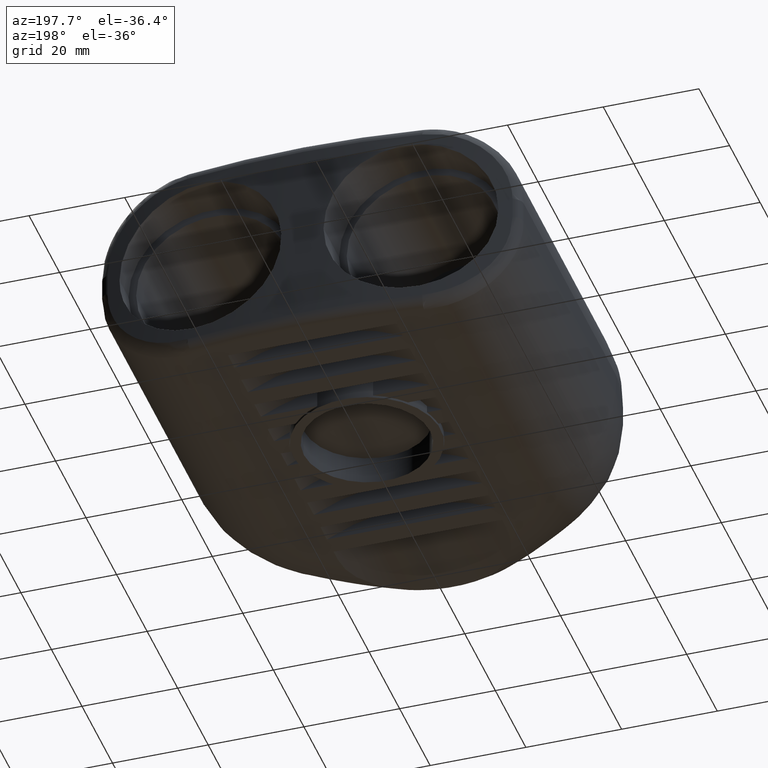
[diagram: clean part render]
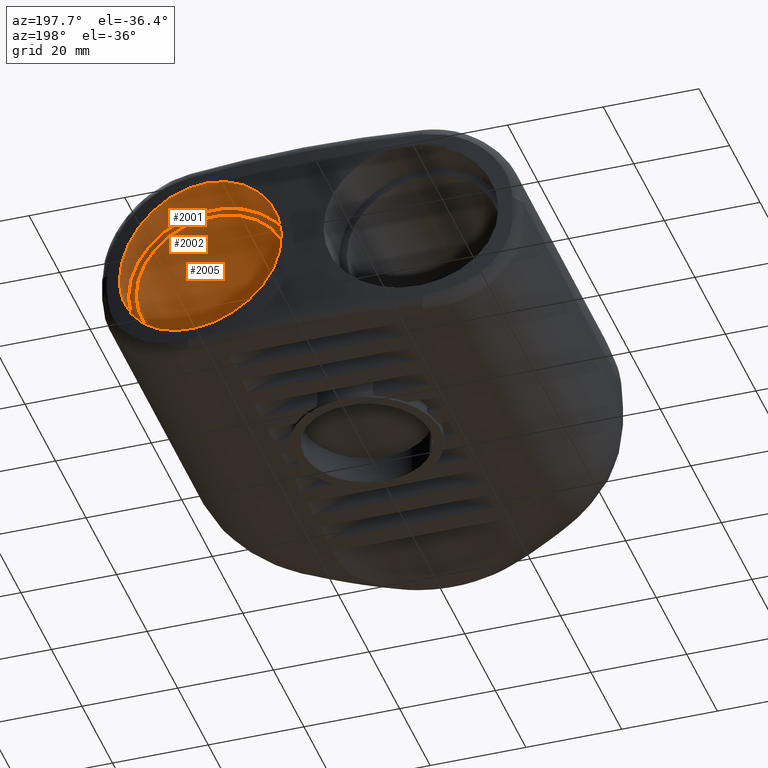
[diagram: same view with one multi-face feature highlighted, each face labeled with its STEP entity id]
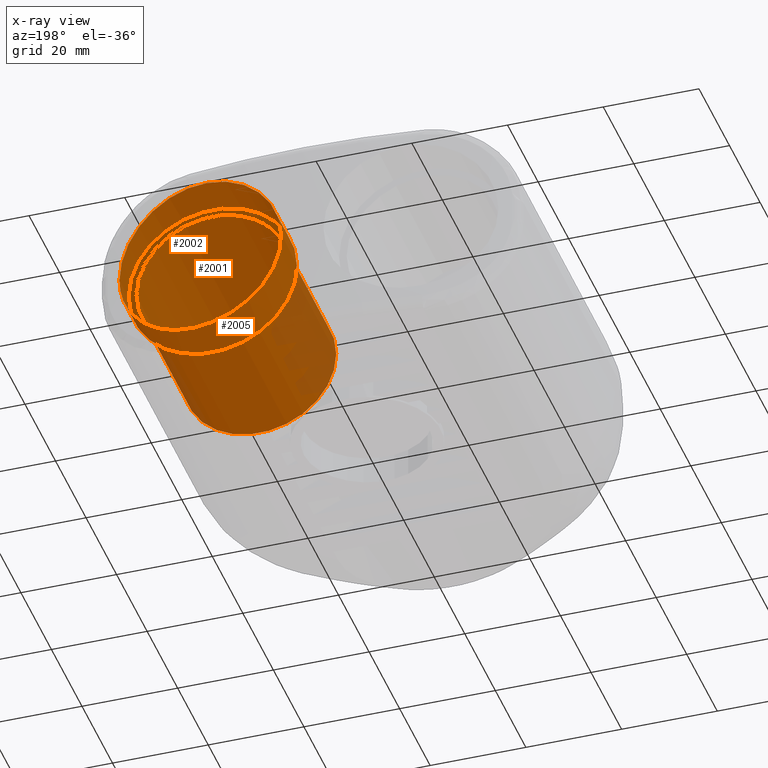
[diagram: x-ray of the same camera — body ghosted, the whole feature saturated]
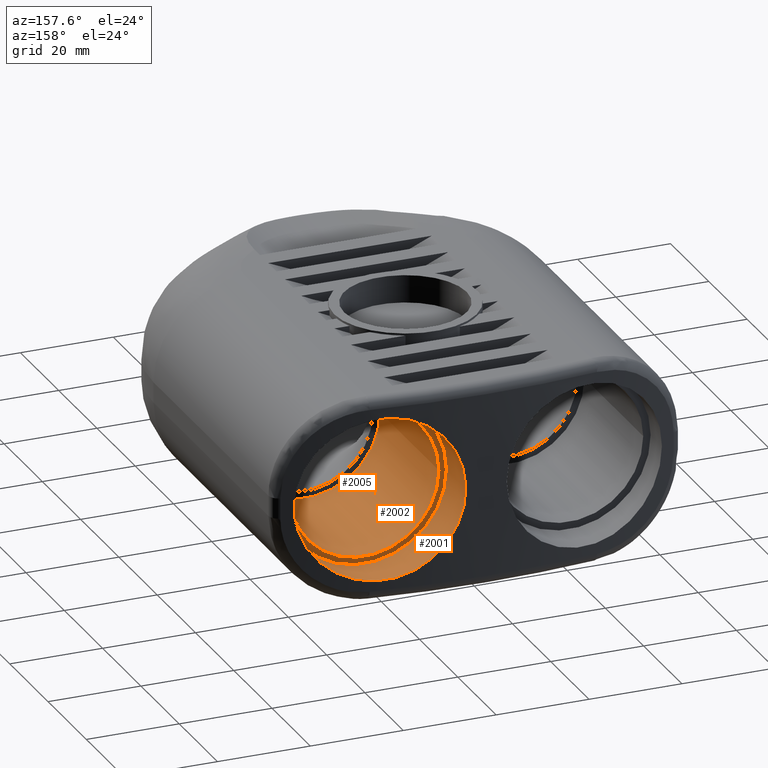
[diagram: same view with one multi-face feature highlighted, each face labeled with its STEP entity id]
A machine part, auxiliary view. The highlighted faces form ONE feature: a stepped (counterbored) hole: 2 coaxial cylindrical walls of radii 16 -> 17.6 mm joined by 1 annular planar shoulder face(s). The faces share edges in the B-rep.
The next image is the same camera in x-ray: the body ghosted and the whole hole feature saturated, so the bore chain is visible through the body.
A second angle (auxiliary view) of the same feature is appended — it is thin or edge-on in the first view.
Their STEP definitions:
[1] entity #2001 (Cylinder):
#303=B_SPLINE_CURVE_WITH_KNOTS('',3,(#3287,#3288,#3289,#3290,#3291,#3292,
#3293,#3294,#3295,#3296,#3297,#3298,#3299,#3300,#3301,#3302,#3303,#3304,
#3305,#3306,#3307,#3308,#3309,#3310,#3311,#3312,#3313,#3314,#3315,#3316,
#3317,#3318,#3319,#3320,#3321,#3322,#3323,#3324,#3325,#3326,#3327,#3328,
#3329,#3330,#3331,#3332,#3333,#3334,#3335,#3336,#3337,#3338,#3339,#3340,
#3341,#3342,#3343,#3344,#3345,#3346,#3347,#3348,#3349,#3350,#3351,#3352),
 .UNSPECIFIED.,.T.,.F.,(4,2,2,2,2,2,2,2,2,2,2,2,2,2,2,2,2,2,2,2,2,2,2,2,
2,2,2,2,2,2,2,2,4),(0.,0.331755142108134,0.663510284216269,0.995265426324403,
1.32702056843254,1.66287461694551,1.99872866545848,2.33458271397145,2.67043676248442,
3.00319724070867,3.33595771893292,3.66871819715716,4.00147867538141,4.33290766795287,
4.66433666052432,4.99576565309578,5.32719464566723,5.65862363823869,5.99005263081015,
6.3214816233816,6.65291061595306,6.98567109417731,7.31843157240155,7.6511920506258,
7.98395252885005,8.31980657736302,8.65566062587599,8.99151467438896,9.32736872290193,
9.65912386501007,9.9908790071182,10.3226341492263,10.6543892913345),
 .UNSPECIFIED.);
#403=FACE_BOUND('',#583,.T.);
#442=FACE_OUTER_BOUND('',#582,.T.);
#582=EDGE_LOOP('',(#1392));
#583=EDGE_LOOP('',(#1393));
#744=CIRCLE('',#2157,17.6);
#881=VERTEX_POINT('',#3286);
#882=VERTEX_POINT('',#3353);
#1083=EDGE_CURVE('',#881,#881,#303,.T.);
#1084=EDGE_CURVE('',#882,#882,#744,.T.);
#1392=ORIENTED_EDGE('',*,*,#1083,.F.);
#1393=ORIENTED_EDGE('',*,*,#1084,.T.);
#1943=CYLINDRICAL_SURFACE('',#2156,17.6);
#2001=ADVANCED_FACE('',(#442,#403),#1943,.F.);
#2156=AXIS2_PLACEMENT_3D('',#3285,#2446,#2447);
#2157=AXIS2_PLACEMENT_3D('',#3354,#2448,#2449);
#2446=DIRECTION('center_axis',(0.,-1.,0.));
#2447=DIRECTION('ref_axis',(1.,0.,0.));
#2448=DIRECTION('center_axis',(0.,-1.,0.));
#2449=DIRECTION('ref_axis',(1.,0.,0.));
#3285=CARTESIAN_POINT('Origin',(22.,86.4,0.));
#3286=CARTESIAN_POINT('',(39.6,82.0386349573624,0.));
#3287=CARTESIAN_POINT('Ctrl Pts',(39.6,82.0386349573624,0.));
#3288=CARTESIAN_POINT('Ctrl Pts',(39.6,82.0386349573624,1.10585047369378));
#3289=CARTESIAN_POINT('Ctrl Pts',(39.4940844894228,82.0623644661815,2.24844656633837));
#3290=CARTESIAN_POINT('Ctrl Pts',(39.049215796028,82.1606964863531,4.51915311073876));
#3291=CARTESIAN_POINT('Ctrl Pts',(38.7103647938308,82.2352538013627,5.64728553713738));
#3292=CARTESIAN_POINT('Ctrl Pts',(37.8160837010485,82.4276083079896,7.80894529879771));
#3293=CARTESIAN_POINT('Ctrl Pts',(37.2599338526389,82.5454798786155,8.84426372447535));
#3294=CARTESIAN_POINT('Ctrl Pts',(35.9771559182474,82.8090255508282,10.7575877627984));
#3295=CARTESIAN_POINT('Ctrl Pts',(35.2504522552934,82.9545975396614,11.6355567682273));
#3296=CARTESIAN_POINT('Ctrl Pts',(33.695350474853,83.2546949237878,13.1988369113445));
#3297=CARTESIAN_POINT('Ctrl Pts',(32.8115964676506,83.4198639010722,13.9362024461563));
#3298=CARTESIAN_POINT('Ctrl Pts',(30.8869248820224,83.7620313376063,15.2358433620567));
#3299=CARTESIAN_POINT('Ctrl Pts',(29.8460520209362,83.9389172695145,15.798214587637));
#3300=CARTESIAN_POINT('Ctrl Pts',(27.673554871894,84.2866652399478,16.7019427883411));
#3301=CARTESIAN_POINT('Ctrl Pts',(26.5402443929934,84.4577237716759,17.0439863538622));
#3302=CARTESIAN_POINT('Ctrl Pts',(24.2591304810357,84.7792927486352,17.493073470657));
#3303=CARTESIAN_POINT('Ctrl Pts',(23.111300674882,84.9297795263665,17.6));
#3304=CARTESIAN_POINT('Ctrl Pts',(20.8989355773379,85.199244966929,17.6));
#3305=CARTESIAN_POINT('Ctrl Pts',(19.7587681260691,85.3276271687734,17.4950009127034));
#3306=CARTESIAN_POINT('Ctrl Pts',(17.4881520705443,85.5612507241356,17.0511408858982));
#3307=CARTESIAN_POINT('Ctrl Pts',(16.3576912356578,85.666521091019,16.7123577885745));
#3308=CARTESIAN_POINT('Ctrl Pts',(14.1877659082835,85.8492984895744,15.8147889743139));
#3309=CARTESIAN_POINT('Ctrl Pts',(13.1465473510751,85.9270276024693,15.2552677046252));
#3310=CARTESIAN_POINT('Ctrl Pts',(11.2200815075696,86.0563066955166,13.9606652365936));
#3311=CARTESIAN_POINT('Ctrl Pts',(10.3348948412203,86.1079574785879,13.2255039013073));
#3312=CARTESIAN_POINT('Ctrl Pts',(8.77091543011287,86.1901666383764,11.660623507841));
#3313=CARTESIAN_POINT('Ctrl Pts',(8.0383134229512,86.2235099686069,10.7782797488846));
#3314=CARTESIAN_POINT('Ctrl Pts',(6.74687810713596,86.2760214390738,8.85676458685119));
#3315=CARTESIAN_POINT('Ctrl Pts',(6.18796707108473,86.2953055057216,7.8176485947397));
#3316=CARTESIAN_POINT('Ctrl Pts',(5.29034515049843,86.3236313872931,5.65008410394321));
#3317=CARTESIAN_POINT('Ctrl Pts',(4.95091698477696,86.3327692627437,4.51990700802318));
#3318=CARTESIAN_POINT('Ctrl Pts',(4.50569714836855,86.3443424424254,2.24725582832102));
#3319=CARTESIAN_POINT('Ctrl Pts',(4.4,86.3467934992411,1.10476330857152));
#3320=CARTESIAN_POINT('Ctrl Pts',(4.4,86.3467934992411,-1.10476330857152));
#3321=CARTESIAN_POINT('Ctrl Pts',(4.50569714836855,86.3443424424254,-2.24725582832102));
#3322=CARTESIAN_POINT('Ctrl Pts',(4.95091698477696,86.3327692627437,-4.51990700802317));
#3323=CARTESIAN_POINT('Ctrl Pts',(5.29034515049843,86.3236313872931,-5.6500841039432));
#3324=CARTESIAN_POINT('Ctrl Pts',(6.18796707108472,86.2953055057216,-7.81764859473968));
#3325=CARTESIAN_POINT('Ctrl Pts',(6.74687810713596,86.2760214390738,-8.85676458685117));
#3326=CARTESIAN_POINT('Ctrl Pts',(8.03831342295119,86.2235099686069,-10.7782797488846));
#3327=CARTESIAN_POINT('Ctrl Pts',(8.77091543011286,86.1901666383764,-11.660623507841));
#3328=CARTESIAN_POINT('Ctrl Pts',(10.3348948412203,86.1079574785879,-13.2255039013073));
#3329=CARTESIAN_POINT('Ctrl Pts',(11.2200815075696,86.0563066955166,-13.9606652365936));
#3330=CARTESIAN_POINT('Ctrl Pts',(13.1465473510751,85.9270276024693,-15.2552677046252));
#3331=CARTESIAN_POINT('Ctrl Pts',(14.1877659082835,85.8492984895744,-15.8147889743139));
#3332=CARTESIAN_POINT('Ctrl Pts',(16.3576912356578,85.666521091019,-16.7123577885745));
#3333=CARTESIAN_POINT('Ctrl Pts',(17.4881520705443,85.5612507241356,-17.0511408858982));
#3334=CARTESIAN_POINT('Ctrl Pts',(19.7587681260691,85.3276271687734,-17.4950009127034));
#3335=CARTESIAN_POINT('Ctrl Pts',(20.8989355773378,85.199244966929,-17.6));
#3336=CARTESIAN_POINT('Ctrl Pts',(23.111300674882,84.9297795263665,-17.6));
#3337=CARTESIAN_POINT('Ctrl Pts',(24.2591304810357,84.7792927486352,-17.493073470657));
#3338=CARTESIAN_POINT('Ctrl Pts',(26.5402443929934,84.4577237716759,-17.0439863538622));
#3339=CARTESIAN_POINT('Ctrl Pts',(27.6735548718939,84.2866652399478,-16.7019427883411));
#3340=CARTESIAN_POINT('Ctrl Pts',(29.8460520209362,83.9389172695145,-15.798214587637));
#3341=CARTESIAN_POINT('Ctrl Pts',(30.8869248820224,83.7620313376063,-15.2358433620567));
#3342=CARTESIAN_POINT('Ctrl Pts',(32.8115964676506,83.4198639010722,-13.9362024461563));
#3343=CARTESIAN_POINT('Ctrl Pts',(33.695350474853,83.2546949237878,-13.1988369113445));
#3344=CARTESIAN_POINT('Ctrl Pts',(35.2504522552934,82.9545975396614,-11.6355567682273));
#3345=CARTESIAN_POINT('Ctrl Pts',(35.9771559182474,82.8090255508282,-10.7575877627984));
#3346=CARTESIAN_POINT('Ctrl Pts',(37.2599338526389,82.5454798786155,-8.84426372447535));
#3347=CARTESIAN_POINT('Ctrl Pts',(37.8160837010485,82.4276083079896,-7.80894529879771));
#3348=CARTESIAN_POINT('Ctrl Pts',(38.7103647938308,82.2352538013627,-5.64728553713738));
#3349=CARTESIAN_POINT('Ctrl Pts',(39.049215796028,82.1606964863531,-4.51915311073876));
#3350=CARTESIAN_POINT('Ctrl Pts',(39.4940844894228,82.0623644661815,-2.24844656633837));
#3351=CARTESIAN_POINT('Ctrl Pts',(39.6,82.0386349573624,-1.10585047369378));
#3352=CARTESIAN_POINT('Ctrl Pts',(39.6,82.0386349573624,8.32667268468867E-16));
#3353=CARTESIAN_POINT('',(4.4,76.15,2.15537836649934E-15));
#3354=CARTESIAN_POINT('Origin',(22.,76.15,0.));
[2] entity #2005 (Cylinder):
#407=FACE_BOUND('',#591,.T.);
#446=FACE_OUTER_BOUND('',#590,.T.);
#590=EDGE_LOOP('',(#1400));
#591=EDGE_LOOP('',(#1401));
#745=CIRCLE('',#2159,16.);
#747=CIRCLE('',#2164,16.);
#883=VERTEX_POINT('',#3356);
#885=VERTEX_POINT('',#3363);
#1085=EDGE_CURVE('',#883,#883,#745,.T.);
#1087=EDGE_CURVE('',#885,#885,#747,.T.);
#1400=ORIENTED_EDGE('',*,*,#1085,.T.);
#1401=ORIENTED_EDGE('',*,*,#1087,.T.);
#1945=CYLINDRICAL_SURFACE('',#2163,16.);
#2005=ADVANCED_FACE('',(#446,#407),#1945,.F.);
#2159=AXIS2_PLACEMENT_3D('',#3357,#2452,#2453);
#2163=AXIS2_PLACEMENT_3D('',#3362,#2460,#2461);
#2164=AXIS2_PLACEMENT_3D('',#3364,#2462,#2463);
#2452=DIRECTION('center_axis',(0.,1.,0.));
#2453=DIRECTION('ref_axis',(1.,0.,0.));
#2460=DIRECTION('center_axis',(0.,-1.,0.));
#2461=DIRECTION('ref_axis',(1.,0.,0.));
#2462=DIRECTION('center_axis',(0.,-1.,0.));
#2463=DIRECTION('ref_axis',(1.,0.,0.));
#3356=CARTESIAN_POINT('',(6.,76.15,1.95943487863577E-15));
#3357=CARTESIAN_POINT('Origin',(22.,76.15,0.));
#3362=CARTESIAN_POINT('Origin',(22.,86.4,0.));
#3363=CARTESIAN_POINT('',(6.,45.4,1.95943487863577E-15));
#3364=CARTESIAN_POINT('Origin',(22.,45.4,0.));
[3] entity #2002 (Plane):
#335=PLANE('',#2158);
#404=FACE_BOUND('',#585,.T.);
#443=FACE_OUTER_BOUND('',#584,.T.);
#584=EDGE_LOOP('',(#1394));
#585=EDGE_LOOP('',(#1395));
#744=CIRCLE('',#2157,17.6);
#745=CIRCLE('',#2159,16.);
#882=VERTEX_POINT('',#3353);
#883=VERTEX_POINT('',#3356);
#1084=EDGE_CURVE('',#882,#882,#744,.T.);
#1085=EDGE_CURVE('',#883,#883,#745,.T.);
#1394=ORIENTED_EDGE('',*,*,#1084,.F.);
#1395=ORIENTED_EDGE('',*,*,#1085,.F.);
#2002=ADVANCED_FACE('',(#443,#404),#335,.T.);
#2157=AXIS2_PLACEMENT_3D('',#3354,#2448,#2449);
#2158=AXIS2_PLACEMENT_3D('',#3355,#2450,#2451);
#2159=AXIS2_PLACEMENT_3D('',#3357,#2452,#2453);
#2448=DIRECTION('center_axis',(0.,-1.,0.));
#2449=DIRECTION('ref_axis',(1.,0.,0.));
#2450=DIRECTION('center_axis',(0.,1.,0.));
#2451=DIRECTION('ref_axis',(0.,0.,1.));
#2452=DIRECTION('center_axis',(0.,1.,0.));
#2453=DIRECTION('ref_axis',(1.,0.,0.));
#3353=CARTESIAN_POINT('',(4.4,76.15,2.15537836649934E-15));
#3354=CARTESIAN_POINT('Origin',(22.,76.15,0.));
#3355=CARTESIAN_POINT('Origin',(22.,76.15,-4.20539024479226E-16));
#3356=CARTESIAN_POINT('',(6.,76.15,1.95943487863577E-15));
#3357=CARTESIAN_POINT('Origin',(22.,76.15,0.));